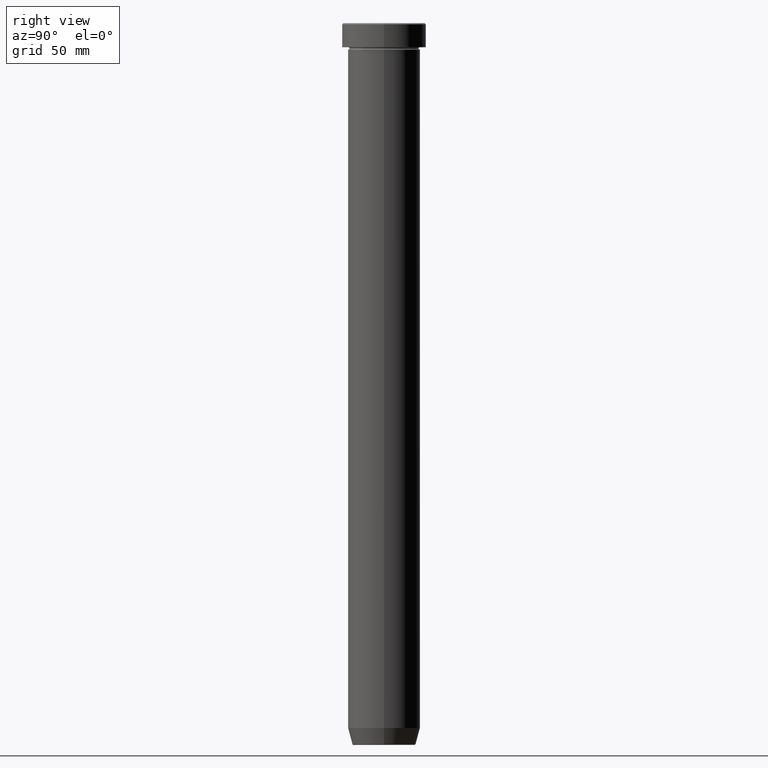
[diagram: clean part render]
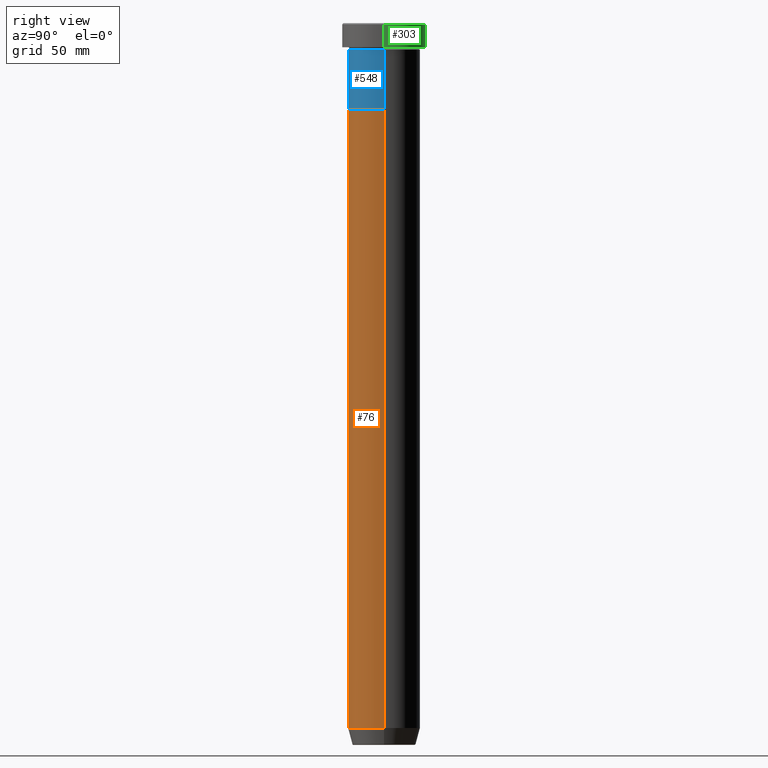
[diagram: same view with three faces highlighted in distinct colors, each labeled with its STEP entity id]
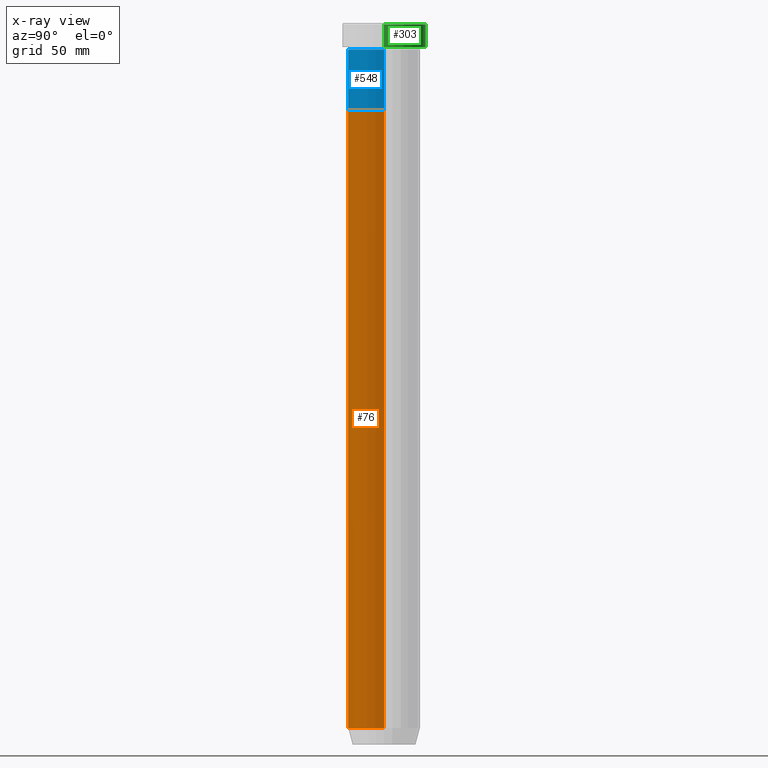
[diagram: x-ray of the same camera — body ghosted, the three highlighted faces saturated]
A machine part, right view with three faces highlighted in distinct colors.
The next image is the same camera in x-ray (body ghosted, the three faces saturated) — at least one of them is partly hidden behind the body in this view.
Their STEP definitions:

[orange] entity #76 — the highlighted cylindrical surface (edge-blend (fillet) strip) has radius 15 mm, axis along (-0, -0, 1).
#22 = DIRECTION ( 'NONE',  ( -0.000000000000000000, -0.000000000000000000, 1.000000000000000000 ) ) ;
#40 = VECTOR ( 'NONE', #22, 1000.000000000000000 ) ;
#51 = LINE ( 'NONE', #215, #72 ) ;
#72 = VECTOR ( 'NONE', #449, 1000.000000000000000 ) ;
#76 = ADVANCED_FACE ( 'NONE', ( #175 ), #359, .T. ) ;
#84 = DIRECTION ( 'NONE',  ( -0.000000000000000000, -0.000000000000000000, 1.000000000000000000 ) ) ;
#122 = VERTEX_POINT ( 'NONE', #593 ) ;
#129 = AXIS2_PLACEMENT_3D ( 'NONE', #546, #84, #264 ) ;
#130 = DIRECTION ( 'NONE',  ( -0.000000000000000000, -0.000000000000000000, 1.000000000000000000 ) ) ;
#153 = VERTEX_POINT ( 'NONE', #353 ) ;
#175 = FACE_OUTER_BOUND ( 'NONE', #458, .T. ) ;
#177 = EDGE_CURVE ( 'NONE', #122, #209, #573, .T. ) ;
#209 = VERTEX_POINT ( 'NONE', #378 ) ;
#215 = CARTESIAN_POINT ( 'NONE',  ( -15.00000000000000000, 1.836970198721029589E-15, 0.000000000000000000 ) ) ;
#259 = DIRECTION ( 'NONE',  ( -0.000000000000000000, -0.000000000000000000, 1.000000000000000000 ) ) ;
#264 = DIRECTION ( 'NONE',  ( 1.000000000000000000, 0.000000000000000000, 0.000000000000000000 ) ) ;
#284 = VERTEX_POINT ( 'NONE', #515 ) ;
#285 = LINE ( 'NONE', #389, #40 ) ;
#312 = DIRECTION ( 'NONE',  ( 1.000000000000000000, 0.000000000000000000, 0.000000000000000000 ) ) ;
#327 = ORIENTED_EDGE ( 'NONE', *, *, #587, .F. ) ;
#353 = CARTESIAN_POINT ( 'NONE',  ( -15.00000000000000000, 1.836970198721029589E-15, -36.00000000000000000 ) ) ;
#359 = CYLINDRICAL_SURFACE ( 'NONE', #476, 15.00000000000000000 ) ;
#361 = DIRECTION ( 'NONE',  ( 1.000000000000000000, 0.000000000000000000, 0.000000000000000000 ) ) ;
#378 = CARTESIAN_POINT ( 'NONE',  ( 15.00000000000000000, 0.000000000000000000, -293.0000000000000000 ) ) ;
#389 = CARTESIAN_POINT ( 'NONE',  ( 15.00000000000000000, 0.000000000000000000, 0.000000000000000000 ) ) ;
#403 = CIRCLE ( 'NONE', #129, 15.00000000000000000 ) ;
#444 = AXIS2_PLACEMENT_3D ( 'NONE', #451, #130, #312 ) ;
#449 = DIRECTION ( 'NONE',  ( -0.000000000000000000, -0.000000000000000000, 1.000000000000000000 ) ) ;
#451 = CARTESIAN_POINT ( 'NONE',  ( 0.000000000000000000, 0.000000000000000000, -293.0000000000000000 ) ) ;
#457 = CARTESIAN_POINT ( 'NONE',  ( 0.000000000000000000, 0.000000000000000000, 0.000000000000000000 ) ) ;
#458 = EDGE_LOOP ( 'NONE', ( #479, #558, #566, #327 ) ) ;
#476 = AXIS2_PLACEMENT_3D ( 'NONE', #457, #259, #361 ) ;
#479 = ORIENTED_EDGE ( 'NONE', *, *, #568, .F. ) ;
#495 = EDGE_CURVE ( 'NONE', #209, #284, #285, .T. ) ;
#515 = CARTESIAN_POINT ( 'NONE',  ( 15.00000000000000000, 0.000000000000000000, -36.00000000000000000 ) ) ;
#546 = CARTESIAN_POINT ( 'NONE',  ( 0.000000000000000000, 0.000000000000000000, -36.00000000000000000 ) ) ;
#558 = ORIENTED_EDGE ( 'NONE', *, *, #177, .T. ) ;
#566 = ORIENTED_EDGE ( 'NONE', *, *, #495, .T. ) ;
#568 = EDGE_CURVE ( 'NONE', #122, #153, #51, .T. ) ;
#573 = CIRCLE ( 'NONE', #444, 15.00000000000000000 ) ;
#587 = EDGE_CURVE ( 'NONE', #153, #284, #403, .T. ) ;
#593 = CARTESIAN_POINT ( 'NONE',  ( -15.00000000000000000, 1.836970198721029589E-15, -293.0000000000000000 ) ) ;

[blue] entity #548 — the highlighted cylindrical surface (edge-blend (fillet) strip) has radius 15 mm, axis along (-0, -0, 1).
#15 = AXIS2_PLACEMENT_3D ( 'NONE', #567, #474, #59 ) ;
#19 = VECTOR ( 'NONE', #302, 1000.000000000000000 ) ;
#37 = CARTESIAN_POINT ( 'NONE',  ( 15.00000000000000000, 0.000000000000000000, -36.00000000000000000 ) ) ;
#42 = ORIENTED_EDGE ( 'NONE', *, *, #362, .T. ) ;
#59 = DIRECTION ( 'NONE',  ( 1.000000000000000000, 0.000000000000000000, 0.000000000000000000 ) ) ;
#64 = VERTEX_POINT ( 'NONE', #37 ) ;
#99 = ORIENTED_EDGE ( 'NONE', *, *, #503, .F. ) ;
#112 = EDGE_LOOP ( 'NONE', ( #528, #42, #155, #99 ) ) ;
#125 = CARTESIAN_POINT ( 'NONE',  ( -15.00000000000000000, 1.836970198721029589E-15, 0.000000000000000000 ) ) ;
#136 = CARTESIAN_POINT ( 'NONE',  ( -15.00000000000000000, 1.836970198721029589E-15, -11.00000000000000000 ) ) ;
#142 = EDGE_CURVE ( 'NONE', #385, #231, #211, .T. ) ;
#155 = ORIENTED_EDGE ( 'NONE', *, *, #348, .T. ) ;
#164 = CIRCLE ( 'NONE', #425, 15.00000000000000000 ) ;
#180 = VECTOR ( 'NONE', #472, 1000.000000000000000 ) ;
#184 = AXIS2_PLACEMENT_3D ( 'NONE', #406, #368, #464 ) ;
#211 = LINE ( 'NONE', #125, #19 ) ;
#226 = CARTESIAN_POINT ( 'NONE',  ( 15.00000000000000000, 0.000000000000000000, 0.000000000000000000 ) ) ;
#231 = VERTEX_POINT ( 'NONE', #136 ) ;
#233 = VERTEX_POINT ( 'NONE', #369 ) ;
#279 = LINE ( 'NONE', #226, #180 ) ;
#296 = DIRECTION ( 'NONE',  ( 1.000000000000000000, 0.000000000000000000, 0.000000000000000000 ) ) ;
#302 = DIRECTION ( 'NONE',  ( -0.000000000000000000, -0.000000000000000000, 1.000000000000000000 ) ) ;
#340 = DIRECTION ( 'NONE',  ( -0.000000000000000000, -0.000000000000000000, 1.000000000000000000 ) ) ;
#348 = EDGE_CURVE ( 'NONE', #64, #233, #279, .T. ) ;
#352 = CARTESIAN_POINT ( 'NONE',  ( -15.00000000000000000, 1.836970198721029589E-15, -36.00000000000000000 ) ) ;
#362 = EDGE_CURVE ( 'NONE', #385, #64, #556, .T. ) ;
#368 = DIRECTION ( 'NONE',  ( -0.000000000000000000, -0.000000000000000000, 1.000000000000000000 ) ) ;
#369 = CARTESIAN_POINT ( 'NONE',  ( 15.00000000000000000, 0.000000000000000000, -11.00000000000000000 ) ) ;
#385 = VERTEX_POINT ( 'NONE', #352 ) ;
#406 = CARTESIAN_POINT ( 'NONE',  ( 0.000000000000000000, 0.000000000000000000, 0.000000000000000000 ) ) ;
#408 = CYLINDRICAL_SURFACE ( 'NONE', #184, 15.00000000000000000 ) ;
#425 = AXIS2_PLACEMENT_3D ( 'NONE', #577, #340, #296 ) ;
#464 = DIRECTION ( 'NONE',  ( 1.000000000000000000, 0.000000000000000000, 0.000000000000000000 ) ) ;
#472 = DIRECTION ( 'NONE',  ( -0.000000000000000000, -0.000000000000000000, 1.000000000000000000 ) ) ;
#474 = DIRECTION ( 'NONE',  ( -0.000000000000000000, -0.000000000000000000, 1.000000000000000000 ) ) ;
#503 = EDGE_CURVE ( 'NONE', #231, #233, #164, .T. ) ;
#528 = ORIENTED_EDGE ( 'NONE', *, *, #142, .F. ) ;
#548 = ADVANCED_FACE ( 'NONE', ( #598 ), #408, .T. ) ;
#556 = CIRCLE ( 'NONE', #15, 15.00000000000000000 ) ;
#567 = CARTESIAN_POINT ( 'NONE',  ( 0.000000000000000000, 0.000000000000000000, -36.00000000000000000 ) ) ;
#577 = CARTESIAN_POINT ( 'NONE',  ( 0.000000000000000000, 0.000000000000000000, -11.00000000000000000 ) ) ;
#598 = FACE_OUTER_BOUND ( 'NONE', #112, .T. ) ;

[green] entity #303 — the highlighted cylindrical surface (partial cylindrical patch) has radius 17.5 mm, axis along (-0, -0, 1).
#12 = CARTESIAN_POINT ( 'NONE',  ( 0.000000000000000000, 0.000000000000000000, -0.5000000000000073275 ) ) ;
#17 = VERTEX_POINT ( 'NONE', #203 ) ;
#36 = DIRECTION ( 'NONE',  ( -0.000000000000000000, -0.000000000000000000, 1.000000000000000000 ) ) ;
#39 = CIRCLE ( 'NONE', #518, 17.50000000000000000 ) ;
#54 = CARTESIAN_POINT ( 'NONE',  ( 0.000000000000000000, 0.000000000000000000, 0.000000000000000000 ) ) ;
#68 = ORIENTED_EDGE ( 'NONE', *, *, #336, .T. ) ;
#69 = EDGE_CURVE ( 'NONE', #108, #297, #540, .T. ) ;
#71 = CARTESIAN_POINT ( 'NONE',  ( -17.50000000000000000, 2.143131898507868248E-15, -0.5000000000000073275 ) ) ;
#88 = VECTOR ( 'NONE', #36, 1000.000000000000000 ) ;
#103 = ORIENTED_EDGE ( 'NONE', *, *, #207, .T. ) ;
#108 = VERTEX_POINT ( 'NONE', #554 ) ;
#150 = ORIENTED_EDGE ( 'NONE', *, *, #69, .F. ) ;
#179 = DIRECTION ( 'NONE',  ( -0.000000000000000000, -0.000000000000000000, 1.000000000000000000 ) ) ;
#203 = CARTESIAN_POINT ( 'NONE',  ( -17.50000000000000000, 2.143131898507868248E-15, -9.999999999999998224 ) ) ;
#207 = EDGE_CURVE ( 'NONE', #108, #17, #427, .T. ) ;
#208 = CARTESIAN_POINT ( 'NONE',  ( 0.000000000000000000, 0.000000000000000000, -9.999999999999998224 ) ) ;
#223 = CARTESIAN_POINT ( 'NONE',  ( 17.50000000000000000, 0.000000000000000000, -0.5000000000000073275 ) ) ;
#247 = VECTOR ( 'NONE', #465, 1000.000000000000000 ) ;
#272 = CARTESIAN_POINT ( 'NONE',  ( -17.50000000000000000, 2.143131898507868248E-15, 0.000000000000000000 ) ) ;
#277 = ORIENTED_EDGE ( 'NONE', *, *, #325, .T. ) ;
#297 = VERTEX_POINT ( 'NONE', #223 ) ;
#303 = ADVANCED_FACE ( 'NONE', ( #469 ), #412, .T. ) ;
#305 = AXIS2_PLACEMENT_3D ( 'NONE', #208, #402, #588 ) ;
#325 = EDGE_CURVE ( 'NONE', #520, #297, #39, .T. ) ;
#335 = AXIS2_PLACEMENT_3D ( 'NONE', #54, #179, #382 ) ;
#336 = EDGE_CURVE ( 'NONE', #17, #520, #557, .T. ) ;
#373 = DIRECTION ( 'NONE',  ( 0.000000000000000000, 0.000000000000000000, -1.000000000000000000 ) ) ;
#382 = DIRECTION ( 'NONE',  ( 1.000000000000000000, 0.000000000000000000, 0.000000000000000000 ) ) ;
#402 = DIRECTION ( 'NONE',  ( -0.000000000000000000, -0.000000000000000000, 1.000000000000000000 ) ) ;
#412 = CYLINDRICAL_SURFACE ( 'NONE', #335, 17.50000000000000000 ) ;
#427 = CIRCLE ( 'NONE', #305, 17.50000000000000000 ) ;
#465 = DIRECTION ( 'NONE',  ( -0.000000000000000000, -0.000000000000000000, 1.000000000000000000 ) ) ;
#469 = FACE_OUTER_BOUND ( 'NONE', #572, .T. ) ;
#499 = CARTESIAN_POINT ( 'NONE',  ( 17.50000000000000000, 0.000000000000000000, 0.000000000000000000 ) ) ;
#518 = AXIS2_PLACEMENT_3D ( 'NONE', #12, #373, #565 ) ;
#520 = VERTEX_POINT ( 'NONE', #71 ) ;
#540 = LINE ( 'NONE', #499, #88 ) ;
#554 = CARTESIAN_POINT ( 'NONE',  ( 17.50000000000000000, 0.000000000000000000, -9.999999999999998224 ) ) ;
#557 = LINE ( 'NONE', #272, #247 ) ;
#565 = DIRECTION ( 'NONE',  ( 1.000000000000000000, 0.000000000000000000, 0.000000000000000000 ) ) ;
#572 = EDGE_LOOP ( 'NONE', ( #103, #68, #277, #150 ) ) ;
#588 = DIRECTION ( 'NONE',  ( 1.000000000000000000, 0.000000000000000000, 0.000000000000000000 ) ) ;